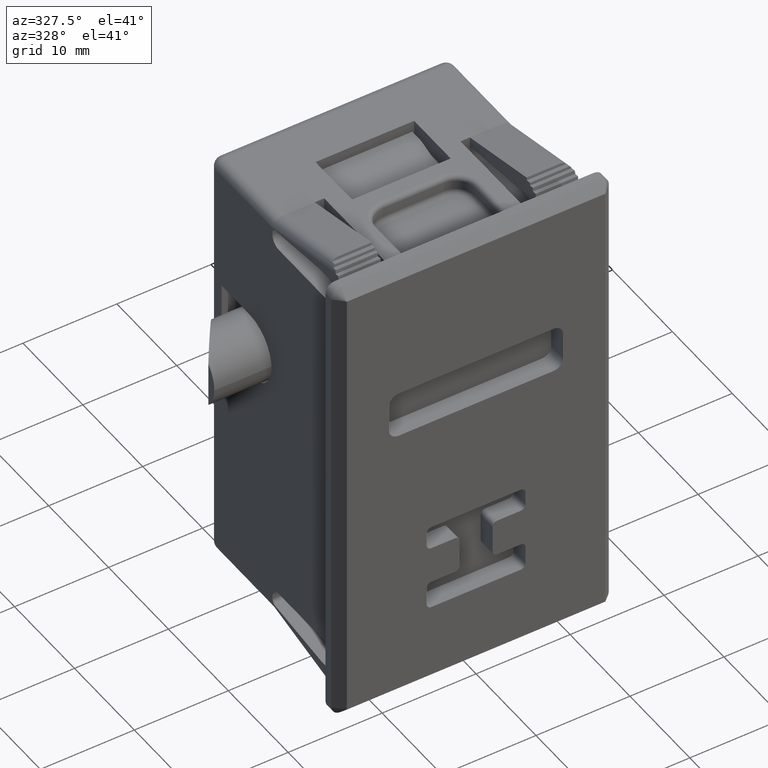
[diagram: clean part render]
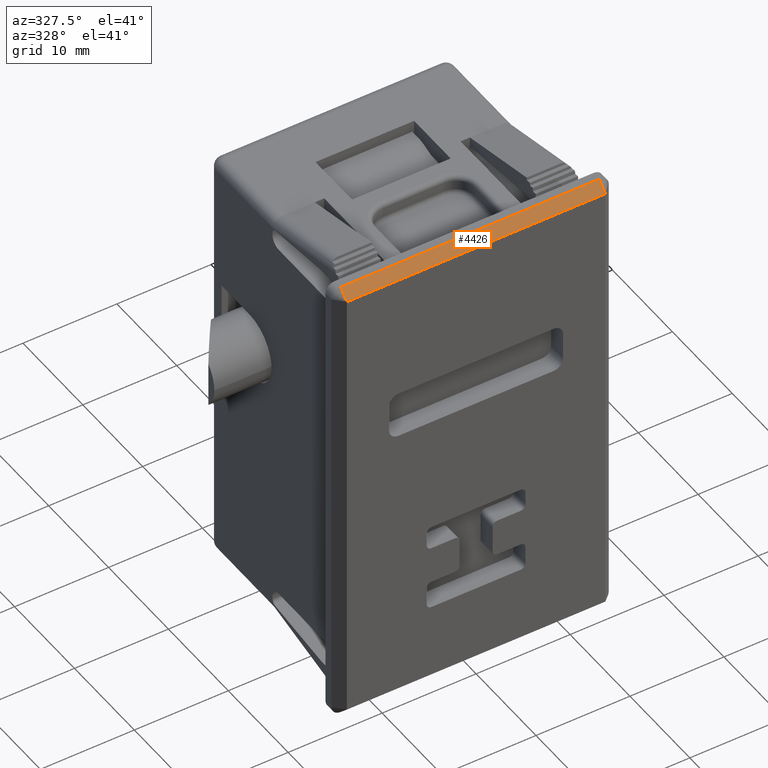
[diagram: same view with one face highlighted and labeled with its STEP entity id]
A machine part, auxiliary view. The second image highlights one B-rep face of the part: STEP entity #4426.
In plain terms, the highlighted planar face has unit normal (0, 0.7071, -0.7071).
Its self-contained STEP definition (entity closure, byte-faithful):
#338 = CARTESIAN_POINT ( 'NONE',  ( -13.75000000000000000, 1.000000000004774000, 25.25000000000000000 ) ) ;
#606 = EDGE_CURVE ( 'NONE', #975, #1862, #3397, .T. ) ;
#879 = ORIENTED_EDGE ( 'NONE', *, *, #606, .F. ) ;
#891 = CARTESIAN_POINT ( 'NONE',  ( -13.75000000000000000, 0.0000000000000000000, 24.25000000000000000 ) ) ;
#975 = VERTEX_POINT ( 'NONE', #338 ) ;
#1305 = ORIENTED_EDGE ( 'NONE', *, *, #4031, .F. ) ;
#1594 = ORIENTED_EDGE ( 'NONE', *, *, #2986, .F. ) ;
#1862 = VERTEX_POINT ( 'NONE', #5266 ) ;
#1904 = VECTOR ( 'NONE', #6416, 1000.000000000000000 ) ;
#1915 = DIRECTION ( 'NONE',  ( 0.0000000000000000000, 0.7071067811865474600, 0.7071067811865474600 ) ) ;
#2418 = CARTESIAN_POINT ( 'NONE',  ( -14.25000000000000000, 1.000000000000000000, 25.25000000000000000 ) ) ;
#2614 = LINE ( 'NONE', #5280, #6509 ) ;
#2647 = FACE_OUTER_BOUND ( 'NONE', #6525, .T. ) ;
#2651 = LINE ( 'NONE', #891, #3530 ) ;
#2704 = VERTEX_POINT ( 'NONE', #3327 ) ;
#2739 = DIRECTION ( 'NONE',  ( -1.000000000000000000, -0.0000000000000000000, -0.0000000000000000000 ) ) ;
#2744 = VECTOR ( 'NONE', #6118, 999.9999999999998900 ) ;
#2925 = ORIENTED_EDGE ( 'NONE', *, *, #6192, .T. ) ;
#2986 = EDGE_CURVE ( 'NONE', #2704, #5795, #2614, .T. ) ;
#3327 = CARTESIAN_POINT ( 'NONE',  ( 13.75000000000000000, 0.0000000000000000000, 24.25000000000000000 ) ) ;
#3397 = LINE ( 'NONE', #4898, #1904 ) ;
#3439 = DIRECTION ( 'NONE',  ( 1.000000000000000000, 0.0000000000000000000, 0.0000000000000000000 ) ) ;
#3530 = VECTOR ( 'NONE', #1915, 1000.000000000000100 ) ;
#4031 = EDGE_CURVE ( 'NONE', #5795, #975, #2651, .T. ) ;
#4100 = LINE ( 'NONE', #5114, #2744 ) ;
#4203 = AXIS2_PLACEMENT_3D ( 'NONE', #2418, #6475, #3439 ) ;
#4426 = ADVANCED_FACE ( 'NONE', ( #2647 ), #4439, .F. ) ;
#4439 = PLANE ( 'NONE',  #4203 ) ;
#4898 = CARTESIAN_POINT ( 'NONE',  ( 13.75000000000000000, 1.000000000000000000, 25.25000000000000000 ) ) ;
#5114 = CARTESIAN_POINT ( 'NONE',  ( 13.75000000000000000, 0.0000000000000000000, 24.25000000000000000 ) ) ;
#5266 = CARTESIAN_POINT ( 'NONE',  ( 13.75000000000000000, 1.000000000004774000, 25.25000000000000000 ) ) ;
#5280 = CARTESIAN_POINT ( 'NONE',  ( -13.75000000000000000, 0.0000000000000000000, 24.25000000000000000 ) ) ;
#5419 = CARTESIAN_POINT ( 'NONE',  ( -13.75000000000000000, 0.0000000000000000000, 24.25000000000000000 ) ) ;
#5795 = VERTEX_POINT ( 'NONE', #5419 ) ;
#6118 = DIRECTION ( 'NONE',  ( 0.0000000000000000000, 0.7071067811882351100, 0.7071067811848600300 ) ) ;
#6192 = EDGE_CURVE ( 'NONE', #2704, #1862, #4100, .T. ) ;
#6416 = DIRECTION ( 'NONE',  ( 1.000000000000000000, 0.0000000000000000000, 0.0000000000000000000 ) ) ;
#6475 = DIRECTION ( 'NONE',  ( 0.0000000000000000000, 0.7071067811865475700, -0.7071067811865475700 ) ) ;
#6509 = VECTOR ( 'NONE', #2739, 1000.000000000000000 ) ;
#6525 = EDGE_LOOP ( 'NONE', ( #2925, #879, #1305, #1594 ) ) ;